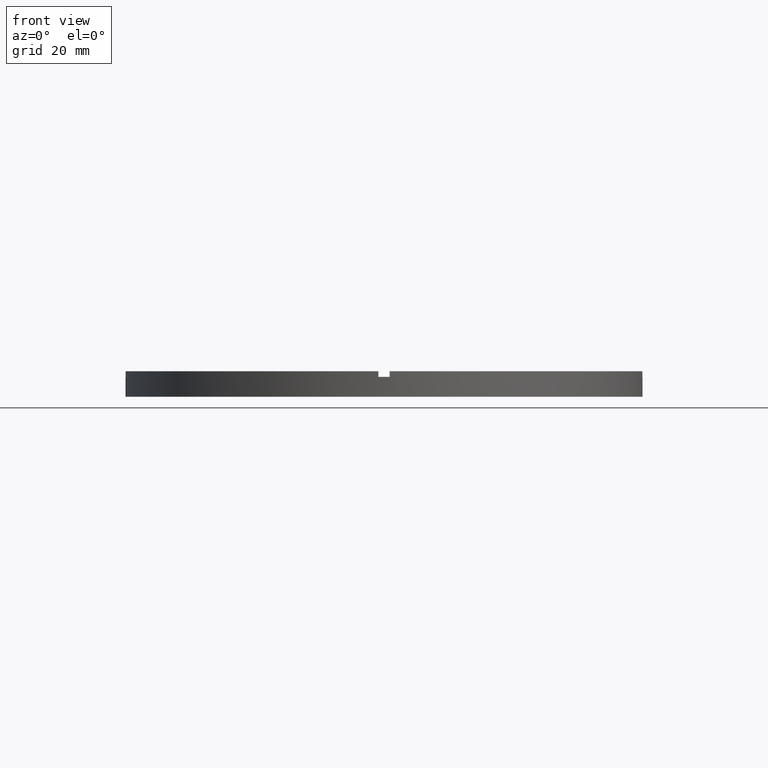
[diagram: clean part render]
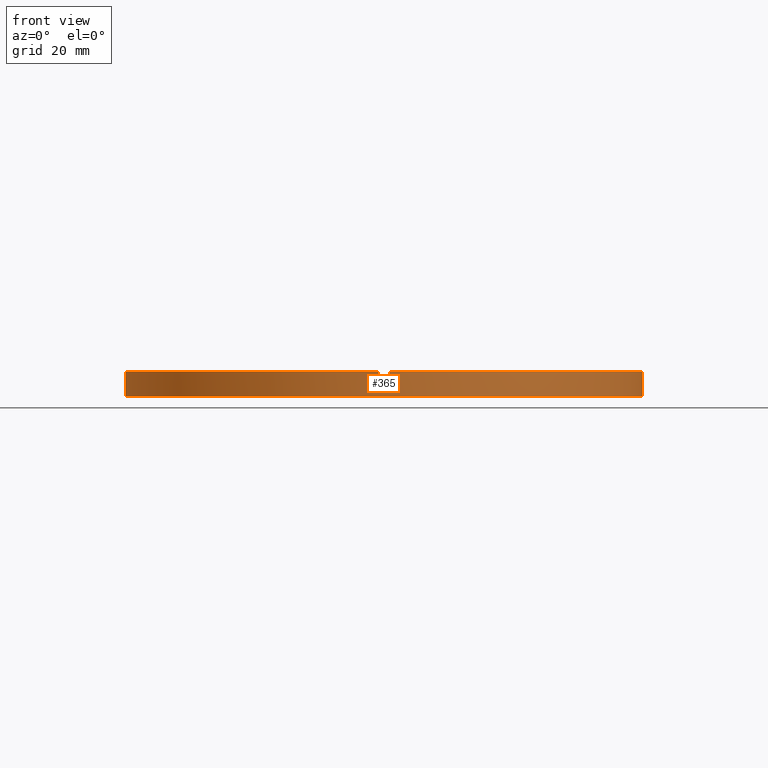
[diagram: same view with one face highlighted and labeled with its STEP entity id]
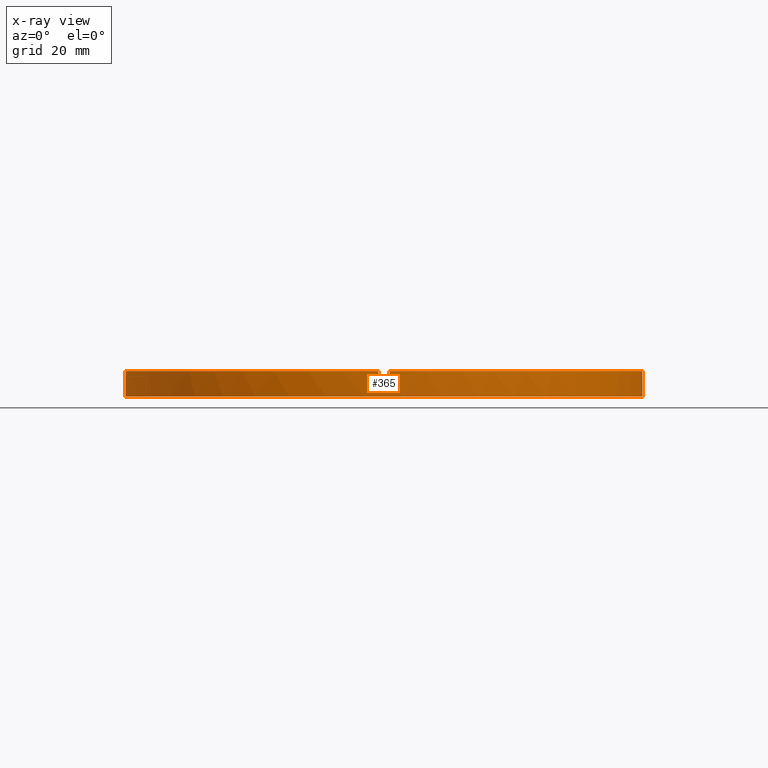
[diagram: x-ray of the same camera — body ghosted, the highlighted face saturated]
A machine part, front view. The second image highlights one B-rep face of the part: STEP entity #365.
The next image is the same camera in x-ray: the body ghosted, the highlighted face saturated — about 0% of this face is hidden behind the body in this view.
In plain terms, the highlighted cylindrical surface (partial cylindrical patch) has radius 45.5 mm, axis along (-0, -0, -1).
Its self-contained STEP definition (entity closure, byte-faithful):
#2 = VERTEX_POINT ( 'NONE', #559 ) ;
#3 = ORIENTED_EDGE ( 'NONE', *, *, #781, .F. ) ;
#7 = VECTOR ( 'NONE', #259, 1000.000000000000000 ) ;
#23 = CARTESIAN_POINT ( 'NONE',  ( -1.000000000000157874, -45.48900966167541782, 4.500000000000000000 ) ) ;
#33 = DIRECTION ( 'NONE',  ( -1.000000000000000000, 0.000000000000000000, 0.000000000000000000 ) ) ;
#40 = AXIS2_PLACEMENT_3D ( 'NONE', #247, #303, #606 ) ;
#41 = DIRECTION ( 'NONE',  ( -0.000000000000000000, -0.000000000000000000, -1.000000000000000000 ) ) ;
#45 = EDGE_CURVE ( 'NONE', #732, #236, #766, .T. ) ;
#48 = EDGE_CURVE ( 'NONE', #252, #433, #239, .T. ) ;
#63 = CARTESIAN_POINT ( 'NONE',  ( 45.50000000000000000, 5.572142936120457130E-15, 4.500000000000000000 ) ) ;
#66 = EDGE_CURVE ( 'NONE', #440, #174, #263, .T. ) ;
#69 = LINE ( 'NONE', #155, #328 ) ;
#73 = DIRECTION ( 'NONE',  ( 0.000000000000000000, 0.000000000000000000, 1.000000000000000000 ) ) ;
#74 = DIRECTION ( 'NONE',  ( 0.000000000000000000, 0.000000000000000000, 1.000000000000000000 ) ) ;
#78 = AXIS2_PLACEMENT_3D ( 'NONE', #415, #73, #504 ) ;
#81 = VECTOR ( 'NONE', #644, 1000.000000000000000 ) ;
#110 = CIRCLE ( 'NONE', #40, 45.50000000000000000 ) ;
#117 = CIRCLE ( 'NONE', #553, 45.50000000000000000 ) ;
#125 = DIRECTION ( 'NONE',  ( 1.000000000000000000, 0.000000000000000000, 0.000000000000000000 ) ) ;
#126 = CARTESIAN_POINT ( 'NONE',  ( 0.9999999999998421263, -45.48900966167542492, 3.499999999999999556 ) ) ;
#128 = DIRECTION ( 'NONE',  ( 0.000000000000000000, 0.000000000000000000, 1.000000000000000000 ) ) ;
#131 = DIRECTION ( 'NONE',  ( 0.000000000000000000, 0.000000000000000000, 1.000000000000000000 ) ) ;
#146 = DIRECTION ( 'NONE',  ( -0.000000000000000000, -0.000000000000000000, -1.000000000000000000 ) ) ;
#155 = CARTESIAN_POINT ( 'NONE',  ( 45.48900966167541782, -1.000000000000156097, 4.500000000000000000 ) ) ;
#163 = ORIENTED_EDGE ( 'NONE', *, *, #640, .F. ) ;
#164 = VERTEX_POINT ( 'NONE', #374 ) ;
#166 = ORIENTED_EDGE ( 'NONE', *, *, #66, .T. ) ;
#174 = VERTEX_POINT ( 'NONE', #23 ) ;
#179 = CARTESIAN_POINT ( 'NONE',  ( -45.48900966167541782, -1.000000000000029976, 4.500000000000000000 ) ) ;
#194 = EDGE_LOOP ( 'NONE', ( #745, #733, #434, #197, #457, #3, #166, #163, #743, #248, #498, #738 ) ) ;
#197 = ORIENTED_EDGE ( 'NONE', *, *, #534, .F. ) ;
#206 = CARTESIAN_POINT ( 'NONE',  ( -45.48900966167541782, -1.000000000000029976, 4.500000000000000000 ) ) ;
#212 = CARTESIAN_POINT ( 'NONE',  ( -45.50000000000000000, 0.000000000000000000, 4.500000000000000000 ) ) ;
#235 = VERTEX_POINT ( 'NONE', #126 ) ;
#236 = VERTEX_POINT ( 'NONE', #560 ) ;
#239 = CIRCLE ( 'NONE', #78, 45.50000000000000000 ) ;
#247 = CARTESIAN_POINT ( 'NONE',  ( 0.000000000000000000, 0.000000000000000000, 4.500000000000000000 ) ) ;
#248 = ORIENTED_EDGE ( 'NONE', *, *, #516, .F. ) ;
#252 = VERTEX_POINT ( 'NONE', #604 ) ;
#259 = DIRECTION ( 'NONE',  ( 0.000000000000000000, 0.000000000000000000, 1.000000000000000000 ) ) ;
#263 = LINE ( 'NONE', #379, #7 ) ;
#279 = EDGE_CURVE ( 'NONE', #433, #465, #338, .T. ) ;
#289 = DIRECTION ( 'NONE',  ( -0.000000000000000000, 0.000000000000000000, 1.000000000000000000 ) ) ;
#303 = DIRECTION ( 'NONE',  ( 0.000000000000000000, 0.000000000000000000, 1.000000000000000000 ) ) ;
#324 = EDGE_CURVE ( 'NONE', #717, #164, #354, .T. ) ;
#328 = VECTOR ( 'NONE', #601, 1000.000000000000000 ) ;
#338 = LINE ( 'NONE', #63, #340 ) ;
#340 = VECTOR ( 'NONE', #146, 1000.000000000000000 ) ;
#354 = LINE ( 'NONE', #212, #81 ) ;
#365 = ADVANCED_FACE ( 'NONE', ( #637 ), #646, .T. ) ;
#374 = CARTESIAN_POINT ( 'NONE',  ( -45.50000000000000000, 0.000000000000000000, 0.000000000000000000 ) ) ;
#377 = DIRECTION ( 'NONE',  ( 1.000000000000000000, 0.000000000000000000, 0.000000000000000000 ) ) ;
#379 = CARTESIAN_POINT ( 'NONE',  ( -1.000000000000157874, -45.48900966167541782, 4.500000000000000000 ) ) ;
#383 = CARTESIAN_POINT ( 'NONE',  ( -45.50000000000000000, 0.000000000000000000, 3.499999999999999556 ) ) ;
#385 = CARTESIAN_POINT ( 'NONE',  ( 0.000000000000000000, 0.000000000000000000, 3.499999999999999556 ) ) ;
#386 = CARTESIAN_POINT ( 'NONE',  ( 0.000000000000000000, 0.000000000000000000, 4.500000000000000000 ) ) ;
#400 = CARTESIAN_POINT ( 'NONE',  ( 45.50000000000000000, 5.572142936120457130E-15, 3.499999999999999556 ) ) ;
#401 = EDGE_CURVE ( 'NONE', #252, #2, #69, .T. ) ;
#407 = LINE ( 'NONE', #757, #412 ) ;
#408 = AXIS2_PLACEMENT_3D ( 'NONE', #386, #41, #33 ) ;
#412 = VECTOR ( 'NONE', #520, 1000.000000000000000 ) ;
#415 = CARTESIAN_POINT ( 'NONE',  ( 0.000000000000000000, 0.000000000000000000, 3.499999999999999556 ) ) ;
#433 = VERTEX_POINT ( 'NONE', #400 ) ;
#434 = ORIENTED_EDGE ( 'NONE', *, *, #401, .T. ) ;
#440 = VERTEX_POINT ( 'NONE', #481 ) ;
#457 = ORIENTED_EDGE ( 'NONE', *, *, #776, .T. ) ;
#465 = VERTEX_POINT ( 'NONE', #740 ) ;
#481 = CARTESIAN_POINT ( 'NONE',  ( -1.000000000000157874, -45.48900966167541782, 3.499999999999999556 ) ) ;
#498 = ORIENTED_EDGE ( 'NONE', *, *, #324, .T. ) ;
#504 = DIRECTION ( 'NONE',  ( 1.000000000000000000, 0.000000000000000000, 0.000000000000000000 ) ) ;
#516 = EDGE_CURVE ( 'NONE', #717, #236, #639, .T. ) ;
#520 = DIRECTION ( 'NONE',  ( -0.000000000000000000, -0.000000000000000000, -1.000000000000000000 ) ) ;
#532 = AXIS2_PLACEMENT_3D ( 'NONE', #385, #289, #762 ) ;
#534 = EDGE_CURVE ( 'NONE', #778, #2, #110, .T. ) ;
#537 = CARTESIAN_POINT ( 'NONE',  ( 0.000000000000000000, 0.000000000000000000, 4.500000000000000000 ) ) ;
#553 = AXIS2_PLACEMENT_3D ( 'NONE', #537, #131, #377 ) ;
#559 = CARTESIAN_POINT ( 'NONE',  ( 45.48900966167541782, -1.000000000000156097, 4.500000000000000000 ) ) ;
#560 = CARTESIAN_POINT ( 'NONE',  ( -45.48900966167541782, -1.000000000000029976, 3.499999999999999556 ) ) ;
#568 = DIRECTION ( 'NONE',  ( -0.000000000000000000, -0.000000000000000000, -1.000000000000000000 ) ) ;
#576 = CARTESIAN_POINT ( 'NONE',  ( 0.000000000000000000, 0.000000000000000000, 0.000000000000000000 ) ) ;
#579 = CARTESIAN_POINT ( 'NONE',  ( 0.9999999999998421263, -45.48900966167542492, 4.500000000000000000 ) ) ;
#584 = EDGE_CURVE ( 'NONE', #164, #465, #635, .T. ) ;
#589 = DIRECTION ( 'NONE',  ( 1.000000000000000000, 0.000000000000000000, 0.000000000000000000 ) ) ;
#601 = DIRECTION ( 'NONE',  ( 0.000000000000000000, 0.000000000000000000, 1.000000000000000000 ) ) ;
#604 = CARTESIAN_POINT ( 'NONE',  ( 45.48900966167541782, -1.000000000000156097, 3.499999999999999556 ) ) ;
#606 = DIRECTION ( 'NONE',  ( 1.000000000000000000, 0.000000000000000000, 0.000000000000000000 ) ) ;
#607 = AXIS2_PLACEMENT_3D ( 'NONE', #576, #128, #589 ) ;
#635 = CIRCLE ( 'NONE', #607, 45.50000000000000000 ) ;
#637 = FACE_OUTER_BOUND ( 'NONE', #194, .T. ) ;
#639 = CIRCLE ( 'NONE', #720, 45.50000000000000000 ) ;
#640 = EDGE_CURVE ( 'NONE', #732, #174, #117, .T. ) ;
#644 = DIRECTION ( 'NONE',  ( -0.000000000000000000, -0.000000000000000000, -1.000000000000000000 ) ) ;
#646 = CYLINDRICAL_SURFACE ( 'NONE', #408, 45.50000000000000000 ) ;
#688 = CIRCLE ( 'NONE', #532, 45.50000000000000000 ) ;
#717 = VERTEX_POINT ( 'NONE', #383 ) ;
#720 = AXIS2_PLACEMENT_3D ( 'NONE', #751, #74, #125 ) ;
#732 = VERTEX_POINT ( 'NONE', #206 ) ;
#733 = ORIENTED_EDGE ( 'NONE', *, *, #48, .F. ) ;
#738 = ORIENTED_EDGE ( 'NONE', *, *, #584, .T. ) ;
#740 = CARTESIAN_POINT ( 'NONE',  ( 45.50000000000000000, 5.572142936120457130E-15, 0.000000000000000000 ) ) ;
#743 = ORIENTED_EDGE ( 'NONE', *, *, #45, .T. ) ;
#745 = ORIENTED_EDGE ( 'NONE', *, *, #279, .F. ) ;
#751 = CARTESIAN_POINT ( 'NONE',  ( 0.000000000000000000, 0.000000000000000000, 3.499999999999999556 ) ) ;
#757 = CARTESIAN_POINT ( 'NONE',  ( 0.9999999999998421263, -45.48900966167542492, 4.500000000000000000 ) ) ;
#762 = DIRECTION ( 'NONE',  ( 1.000000000000000000, 0.000000000000000000, 0.000000000000000000 ) ) ;
#766 = LINE ( 'NONE', #179, #768 ) ;
#768 = VECTOR ( 'NONE', #568, 1000.000000000000000 ) ;
#776 = EDGE_CURVE ( 'NONE', #778, #235, #407, .T. ) ;
#778 = VERTEX_POINT ( 'NONE', #579 ) ;
#781 = EDGE_CURVE ( 'NONE', #440, #235, #688, .T. ) ;